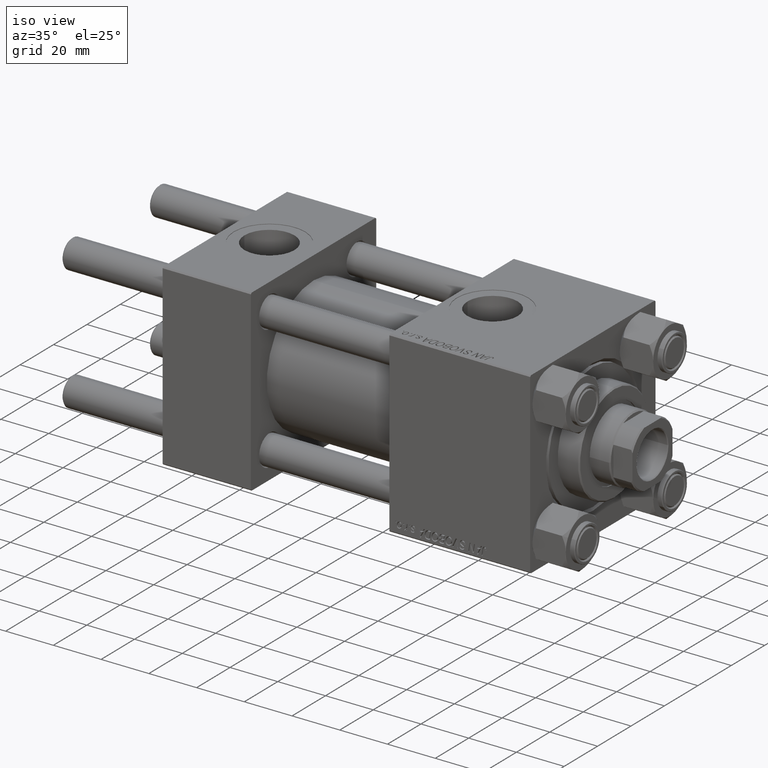
[diagram: clean part render]
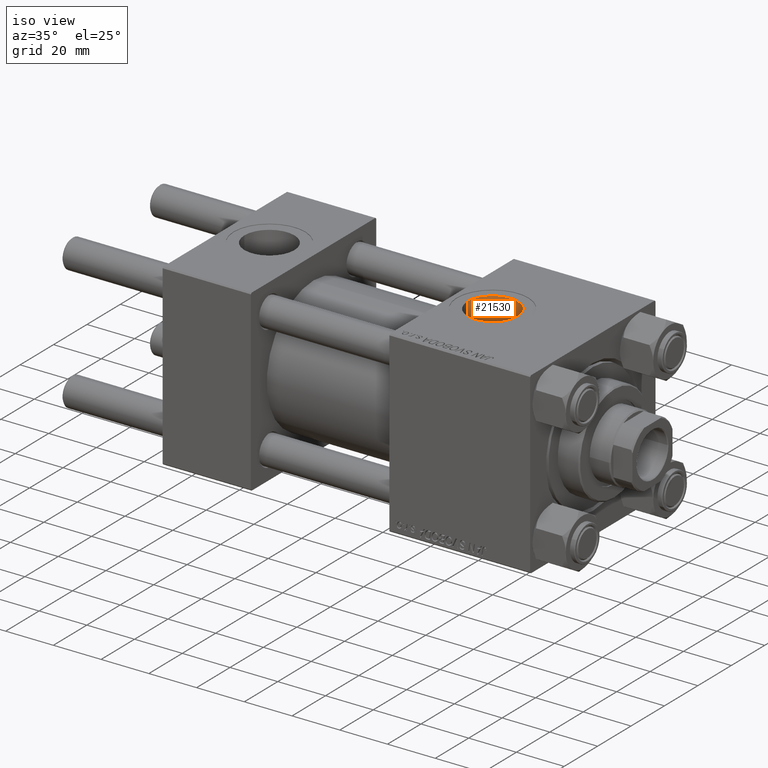
[diagram: same view with one face highlighted and labeled with its STEP entity id]
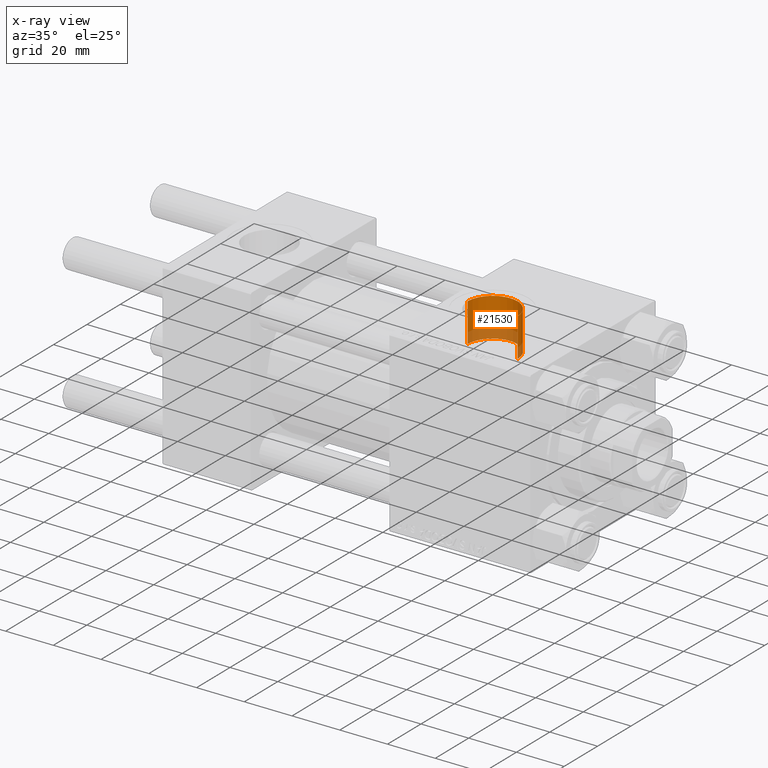
[diagram: x-ray of the same camera — body ghosted, the highlighted face saturated]
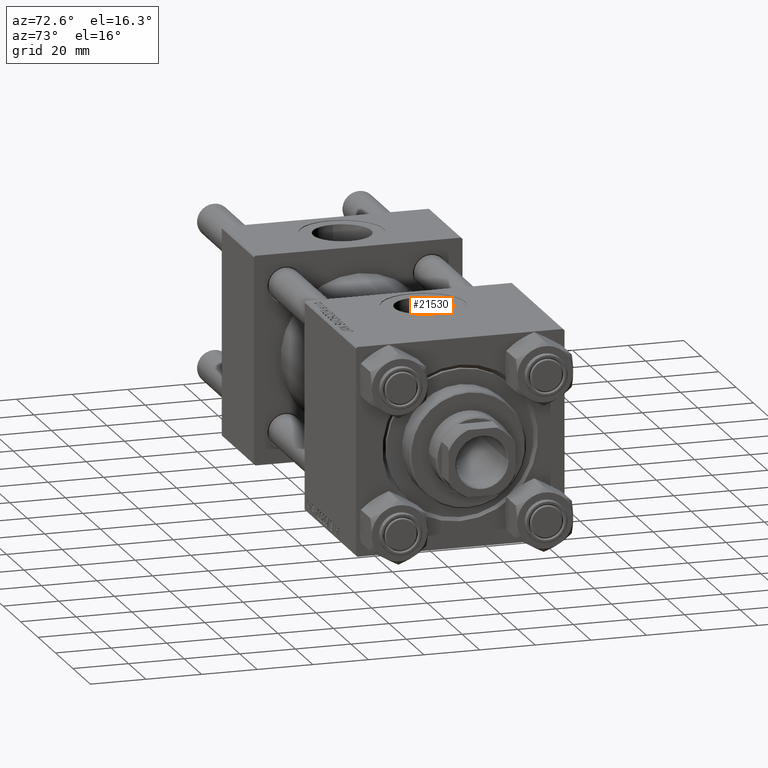
[diagram: same view with one face highlighted and labeled with its STEP entity id]
A machine part, iso view. The second image highlights one B-rep face of the part: STEP entity #21530.
The next image is the same camera in x-ray: the body ghosted, the highlighted face saturated — about 27% of this face is hidden behind the body in this view.
A second angle (auxiliary view) of the same face is appended — the face is thin or edge-on in the first view.
In plain terms, the highlighted cylindrical surface (edge-blend (fillet) strip) has radius 10.48 mm, axis along (0, 0, -1).
Its self-contained STEP definition (entity closure, byte-faithful):
#896 = ORIENTED_EDGE ( 'NONE', *, *, #42702, .F. ) ;
#1529 = LINE ( 'NONE', #37940, #46167 ) ;
#3668 = CARTESIAN_POINT ( 'NONE',  ( 112.0000000000000000, -6.938893903907226011E-15, 60.29999999999998295 ) ) ;
#10566 = EDGE_CURVE ( 'NONE', #42902, #13875, #44378, .T. ) ;
#12059 = DIRECTION ( 'NONE',  ( 1.000000000000000000, 0.000000000000000000, 0.000000000000000000 ) ) ;
#13875 = VERTEX_POINT ( 'NONE', #34078 ) ;
#15160 = CIRCLE ( 'NONE', #38603, 10.48000000000000398 ) ;
#17236 = VERTEX_POINT ( 'NONE', #31904 ) ;
#19632 = DIRECTION ( 'NONE',  ( 0.000000000000000000, 0.000000000000000000, -1.000000000000000000 ) ) ;
#19775 = CARTESIAN_POINT ( 'NONE',  ( 101.5199999999999960, -6.938893903907226011E-15, 60.29999999999998295 ) ) ;
#21530 = ADVANCED_FACE ( 'NONE', ( #27481 ), #39531, .F. ) ;
#23844 = DIRECTION ( 'NONE',  ( 0.000000000000000000, 0.000000000000000000, 1.000000000000000000 ) ) ;
#25514 = VECTOR ( 'NONE', #35741, 1000.000000000000000 ) ;
#25651 = CARTESIAN_POINT ( 'NONE',  ( 101.5199999999999960, -6.938893903907226011E-15, 37.29999999999998295 ) ) ;
#26921 = CIRCLE ( 'NONE', #35245, 10.48000000000000398 ) ;
#27481 = FACE_OUTER_BOUND ( 'NONE', #46922, .T. ) ;
#28170 = CARTESIAN_POINT ( 'NONE',  ( 122.4800000000000040, -5.655464058400800522E-15, 37.29999999999998295 ) ) ;
#30071 = DIRECTION ( 'NONE',  ( 0.000000000000000000, 0.000000000000000000, -1.000000000000000000 ) ) ;
#30247 = DIRECTION ( 'NONE',  ( 1.000000000000000000, 0.000000000000000000, 0.000000000000000000 ) ) ;
#31904 = CARTESIAN_POINT ( 'NONE',  ( 122.4800000000000040, -5.655464058400800522E-15, 21.09999999999998010 ) ) ;
#33643 = ORIENTED_EDGE ( 'NONE', *, *, #48309, .F. ) ;
#34078 = CARTESIAN_POINT ( 'NONE',  ( 101.5199999999999960, -6.938893903907226011E-15, 21.09999999999998010 ) ) ;
#35245 = AXIS2_PLACEMENT_3D ( 'NONE', #41768, #49876, #30247 ) ;
#35741 = DIRECTION ( 'NONE',  ( 0.000000000000000000, 0.000000000000000000, -1.000000000000000000 ) ) ;
#35915 = EDGE_CURVE ( 'NONE', #42902, #39621, #26921, .T. ) ;
#37774 = ORIENTED_EDGE ( 'NONE', *, *, #10566, .T. ) ;
#37940 = CARTESIAN_POINT ( 'NONE',  ( 122.4800000000000040, -5.655464058400799734E-15, 60.29999999999998295 ) ) ;
#38603 = AXIS2_PLACEMENT_3D ( 'NONE', #40323, #23844, #12059 ) ;
#39531 = CYLINDRICAL_SURFACE ( 'NONE', #42431, 10.48000000000000398 ) ;
#39621 = VERTEX_POINT ( 'NONE', #28170 ) ;
#40323 = CARTESIAN_POINT ( 'NONE',  ( 112.0000000000000000, -6.938893903907226011E-15, 21.09999999999998010 ) ) ;
#41768 = CARTESIAN_POINT ( 'NONE',  ( 112.0000000000000000, -6.938893903907226011E-15, 37.29999999999998295 ) ) ;
#42431 = AXIS2_PLACEMENT_3D ( 'NONE', #3668, #19632, #51565 ) ;
#42702 = EDGE_CURVE ( 'NONE', #17236, #13875, #15160, .T. ) ;
#42902 = VERTEX_POINT ( 'NONE', #25651 ) ;
#44378 = LINE ( 'NONE', #19775, #25514 ) ;
#46167 = VECTOR ( 'NONE', #30071, 1000.000000000000000 ) ;
#46922 = EDGE_LOOP ( 'NONE', ( #33643, #47303, #37774, #896 ) ) ;
#47303 = ORIENTED_EDGE ( 'NONE', *, *, #35915, .F. ) ;
#48309 = EDGE_CURVE ( 'NONE', #39621, #17236, #1529, .T. ) ;
#49876 = DIRECTION ( 'NONE',  ( -0.000000000000000000, -0.000000000000000000, -1.000000000000000000 ) ) ;
#51565 = DIRECTION ( 'NONE',  ( -1.000000000000000000, 0.000000000000000000, 0.000000000000000000 ) ) ;